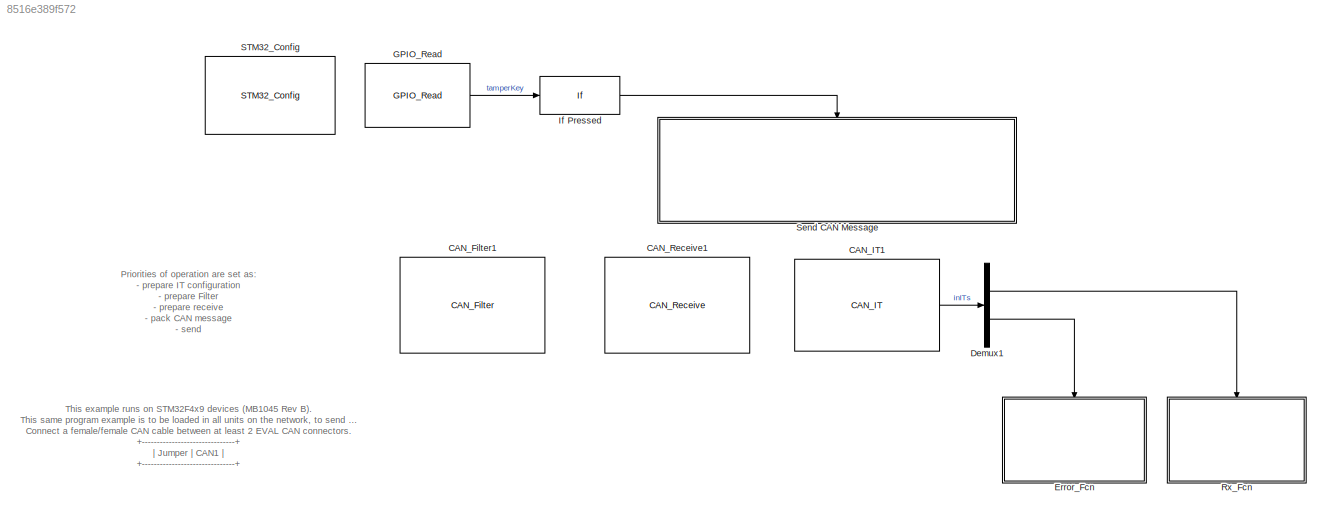
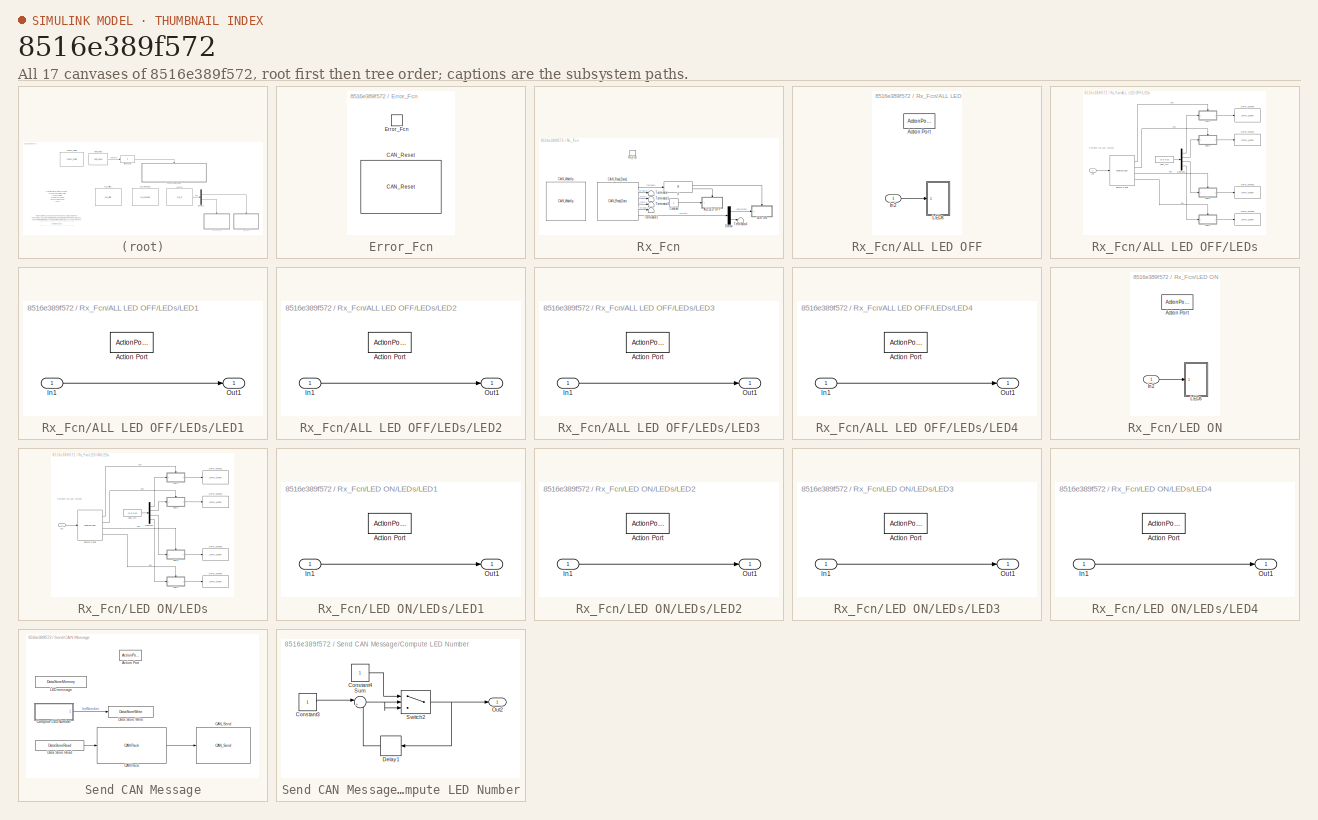
[diagram: thumbnail index - all 17 canvases of the model, root first then tree order]
MODEL slx_8516e389f572
KIND model
CONFIG AbsTol = auto
CONFIG EnableMultiTasking = off
CONFIG FixedStep = 0.25
CONFIG MaxStep = auto
CONFIG MinStep = auto
CONFIG RelTol = 1e-3
CONFIG SampleTimeConstraint = Unconstrained
CONFIG Solver = FixedStepAuto
CONFIG SolverName = FixedStepAuto
CONFIG StartTime = 0.0
CONFIG StopTime = 10.0
BLOCK [Reference] CAN_Filter1  REF=CAN_Lib/CAN_Filter
  AttributesFormatString = Priority=%<Priority>
  Ports = []
  Priority = 2
  SourceBlock = CAN_Lib/CAN_Filter
  SourceProductName = Target Support Package - STM32 Adapter
  SourceType = CAN_Filter
BLOCK [Reference] CAN_IT1  REF=CAN_Lib/CAN_IT
  AttributesFormatString = Priority=%<Priority>
  Ports = [0, 1]
  Priority = 1
  SourceBlock = CAN_Lib/CAN_IT
  SourceProductName = Target Support Package - STM32 Adapter
  SourceType = CAN_IT
BLOCK [Reference] CAN_Receive1  REF=CAN_Lib/CAN_Receive
  AttributesFormatString = Priority=%<Priority>
  Ports = []
  Priority = 3
  SourceBlock = CAN_Lib/CAN_Receive
  SourceProductName = Target Support Package - STM32 Adapter
  SourceType = CAN_Receive
BLOCK [Demux] Demux1
  DisplayOption = bar
  Outputs = 2
  Ports = [1, 2]
BLOCK [SubSystem] Error_Fcn
  Ports = [0, 0, 0, 1]
  RequestExecContextInheritance = off
  TreatAsAtomicUnit = on
BLOCK [Reference] Error_Fcn/CAN_Reset  REF=CAN_Lib/CAN_Reset
  Ports = []
  SourceBlock = CAN_Lib/CAN_Reset
  SourceProductName = Target Support Package - STM32 Adapter
  SourceType = CAN_Reset
BLOCK [TriggerPort] Error_Fcn/Error_Fcn
  Ports = []
  StatesWhenEnabling = held
  TriggerType = function-call
  VariantControl = Variant
BLOCK [Reference] GPIO_Read  REF=GPIO_Lib/GPIO_Read
  Ports = [0, 1]
  SourceBlock = GPIO_Lib/GPIO_Read
  SourceProductName = Target Support Package - STM32 Adapter
  SourceType = GPIO_Read
BLOCK [If] If Pressed
  IfExpression = u1 == 0
  Ports = [1, 1]
  ShowElse = off
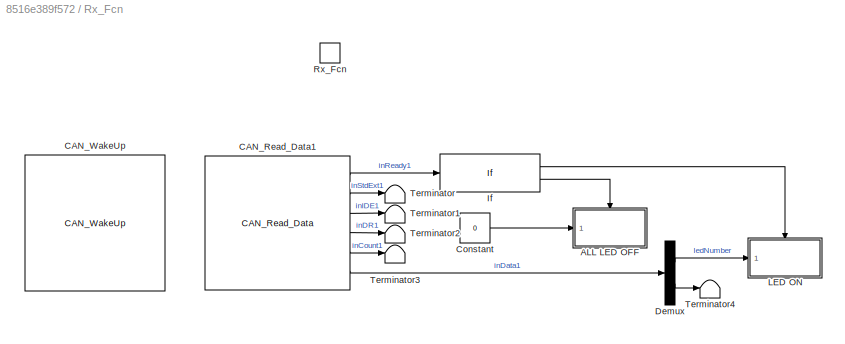
BLOCK [SubSystem] Rx_Fcn
  Ports = [0, 0, 0, 1]
  RequestExecContextInheritance = off
  TreatAsAtomicUnit = on
BLOCK [SubSystem] Rx_Fcn/ALL LED OFF
  Ports = [1, 0, 0, 0, 0, 0, 0, 1]
  RTWSystemCode = Inline
  RequestExecContextInheritance = off
  TreatAsAtomicUnit = on
BLOCK [ActionPort] Rx_Fcn/ALL LED OFF/Action Port
  ActionType = else
BLOCK [Inport] Rx_Fcn/ALL LED OFF/In2
  IconDisplay = Port number
  OutDataTypeStr = uint8
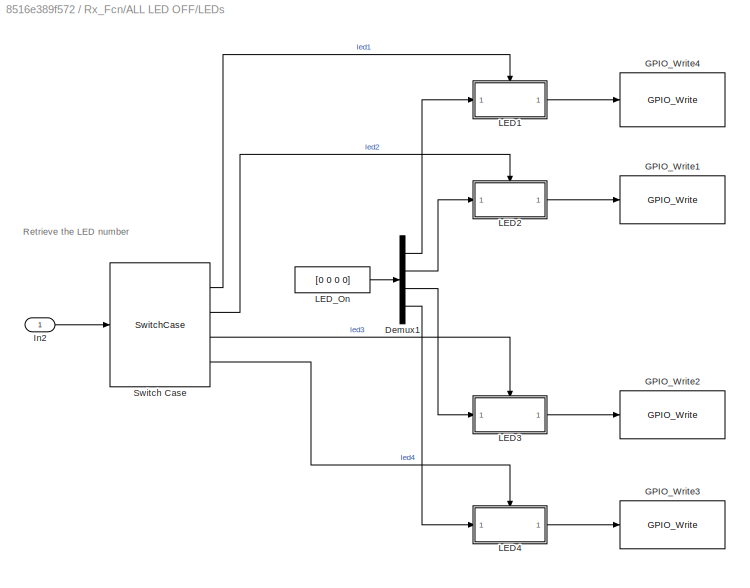
BLOCK [SubSystem] Rx_Fcn/ALL LED OFF/LEDs
  Ports = [1]
  RequestExecContextInheritance = off
BLOCK [Demux] Rx_Fcn/ALL LED OFF/LEDs/Demux1
  DisplayOption = bar
  Ports = [1, 4]
BLOCK [Reference] Rx_Fcn/ALL LED OFF/LEDs/GPIO_Write1  REF=GPIO_Lib/GPIO_Write
  Ports = [1]
  SourceBlock = GPIO_Lib/GPIO_Write
  SourceProductName = Target Support Package - STM32 Adapter
  SourceType = GPIO_Write
BLOCK [Reference] Rx_Fcn/ALL LED OFF/LEDs/GPIO_Write2  REF=GPIO_Lib/GPIO_Write
  Ports = [1]
  SourceBlock = GPIO_Lib/GPIO_Write
  SourceProductName = Target Support Package - STM32 Adapter
  SourceType = GPIO_Write
BLOCK [Reference] Rx_Fcn/ALL LED OFF/LEDs/GPIO_Write3  REF=GPIO_Lib/GPIO_Write
  Ports = [1]
  SourceBlock = GPIO_Lib/GPIO_Write
  SourceProductName = Target Support Package - STM32 Adapter
  SourceType = GPIO_Write
BLOCK [Reference] Rx_Fcn/ALL LED OFF/LEDs/GPIO_Write4  REF=GPIO_Lib/GPIO_Write
  Ports = [1]
  SourceBlock = GPIO_Lib/GPIO_Write
  SourceProductName = Target Support Package - STM32 Adapter
  SourceType = GPIO_Write
BLOCK [Inport] Rx_Fcn/ALL LED OFF/LEDs/In2
  IconDisplay = Port number
  OutDataTypeStr = uint8
BLOCK [SubSystem] Rx_Fcn/ALL LED OFF/LEDs/LED1
  Ports = [1, 1, 0, 0, 0, 0, 0, 1]
  RequestExecContextInheritance = off
  TreatAsAtomicUnit = on
BLOCK [ActionPort] Rx_Fcn/ALL LED OFF/LEDs/LED1/Action Port
  ActionType = case
BLOCK [Inport] Rx_Fcn/ALL LED OFF/LEDs/LED1/In1
  IconDisplay = Port number and signal name
  OutDataTypeStr = uint32
  VarSizeSig = No
BLOCK [Outport] Rx_Fcn/ALL LED OFF/LEDs/LED1/Out1
  IconDisplay = Port number and signal name
  InitialOutput = [1]
  OutDataTypeStr = uint32
  OutputWhenDisabled = reset
  VarSizeSig = No
BLOCK [SubSystem] Rx_Fcn/ALL LED OFF/LEDs/LED2
  Ports = [1, 1, 0, 0, 0, 0, 0, 1]
  RequestExecContextInheritance = off
  TreatAsAtomicUnit = on
BLOCK [ActionPort] Rx_Fcn/ALL LED OFF/LEDs/LED2/Action Port
  ActionType = case
BLOCK [Inport] Rx_Fcn/ALL LED OFF/LEDs/LED2/In1
  IconDisplay = Port number and signal name
BLOCK [Outport] Rx_Fcn/ALL LED OFF/LEDs/LED2/Out1
  IconDisplay = Port number
  InitialOutput = [1]
  OutDataTypeStr = uint32
  OutputWhenDisabled = reset
BLOCK [SubSystem] Rx_Fcn/ALL LED OFF/LEDs/LED3
  Ports = [1, 1, 0, 0, 0, 0, 0, 1]
  RequestExecContextInheritance = off
  TreatAsAtomicUnit = on
BLOCK [ActionPort] Rx_Fcn/ALL LED OFF/LEDs/LED3/Action Port
  ActionType = case
BLOCK [Inport] Rx_Fcn/ALL LED OFF/LEDs/LED3/In1
  IconDisplay = Port number
BLOCK [Outport] Rx_Fcn/ALL LED OFF/LEDs/LED3/Out1
  IconDisplay = Port number
  InitialOutput = [1]
  OutputWhenDisabled = reset
BLOCK [SubSystem] Rx_Fcn/ALL LED OFF/LEDs/LED4
  Ports = [1, 1, 0, 0, 0, 0, 0, 1]
  RequestExecContextInheritance = off
  TreatAsAtomicUnit = on
BLOCK [ActionPort] Rx_Fcn/ALL LED OFF/LEDs/LED4/Action Port
  ActionType = case
BLOCK [Inport] Rx_Fcn/ALL LED OFF/LEDs/LED4/In1
  IconDisplay = Port number
BLOCK [Outport] Rx_Fcn/ALL LED OFF/LEDs/LED4/Out1
  IconDisplay = Port number
  InitialOutput = [1]
  OutputWhenDisabled = reset
BLOCK [Constant] Rx_Fcn/ALL LED OFF/LEDs/LED_On
  OutDataTypeStr = uint32
  Value = [0 0 0 0]
BLOCK [SwitchCase] Rx_Fcn/ALL LED OFF/LEDs/Switch Case
  CaseConditions = {1,2,3,4}
  Ports = [1, 4]
  ShowDefaultCase = off
BLOCK [Reference] Rx_Fcn/CAN_Read_Data1  REF=CAN_Lib/CAN_Read_Data
  Ports = [0, 6]
  SourceBlock = CAN_Lib/CAN_Read_Data
  SourceProductName = Target Support Package - STM32 Adapter
  SourceType = CAN_Read_Data
BLOCK [Reference] Rx_Fcn/CAN_WakeUp  REF=CAN_Lib/CAN_WakeUp
  Ports = []
  SourceBlock = CAN_Lib/CAN_WakeUp
  SourceProductName = Target Support Package - STM32 Adapter
  SourceType = CAN_WakeUp
BLOCK [Constant] Rx_Fcn/Constant
  OutDataTypeStr = uint8
  Value = 0
BLOCK [Demux] Rx_Fcn/Demux
  DisplayOption = bar
  Outputs = 2
  Ports = [1, 2]
BLOCK [If] Rx_Fcn/If
  Ports = [1, 2]
BLOCK [SubSystem] Rx_Fcn/LED ON
  Ports = [1, 0, 0, 0, 0, 0, 0, 1]
  RTWSystemCode = Inline
  RequestExecContextInheritance = off
  TreatAsAtomicUnit = on
BLOCK [ActionPort] Rx_Fcn/LED ON/Action Port
  ActionType = then
BLOCK [Inport] Rx_Fcn/LED ON/In2
  IconDisplay = Port number
  OutDataTypeStr = uint8
BLOCK [SubSystem] Rx_Fcn/LED ON/LEDs
  Ports = [1]
  RTWFcnName = setLed
  RTWFcnNameOpts = User specified
  RTWSystemCode = Reusable function
  RequestExecContextInheritance = off
  TreatAsAtomicUnit = on
BLOCK [Demux] Rx_Fcn/LED ON/LEDs/Demux1
  DisplayOption = bar
  Ports = [1, 4]
BLOCK [Reference] Rx_Fcn/LED ON/LEDs/GPIO_Write1  REF=GPIO_Lib/GPIO_Write
  Ports = [1]
  SourceBlock = GPIO_Lib/GPIO_Write
  SourceProductName = Target Support Package - STM32 Adapter
  SourceType = GPIO_Write
BLOCK [Reference] Rx_Fcn/LED ON/LEDs/GPIO_Write2  REF=GPIO_Lib/GPIO_Write
  Ports = [1]
  SourceBlock = GPIO_Lib/GPIO_Write
  SourceProductName = Target Support Package - STM32 Adapter
  SourceType = GPIO_Write
BLOCK [Reference] Rx_Fcn/LED ON/LEDs/GPIO_Write3  REF=GPIO_Lib/GPIO_Write
  Ports = [1]
  SourceBlock = GPIO_Lib/GPIO_Write
  SourceProductName = Target Support Package - STM32 Adapter
  SourceType = GPIO_Write
BLOCK [Reference] Rx_Fcn/LED ON/LEDs/GPIO_Write4  REF=GPIO_Lib/GPIO_Write
  Ports = [1]
  SourceBlock = GPIO_Lib/GPIO_Write
  SourceProductName = Target Support Package - STM32 Adapter
  SourceType = GPIO_Write
BLOCK [Inport] Rx_Fcn/LED ON/LEDs/In2
  IconDisplay = Port number
  OutDataTypeStr = uint8
BLOCK [SubSystem] Rx_Fcn/LED ON/LEDs/LED1
  Ports = [1, 1, 0, 0, 0, 0, 0, 1]
  RequestExecContextInheritance = off
  TreatAsAtomicUnit = on
BLOCK [ActionPort] Rx_Fcn/LED ON/LEDs/LED1/Action Port
  ActionType = case
BLOCK [Inport] Rx_Fcn/LED ON/LEDs/LED1/In1
  IconDisplay = Port number and signal name
  OutDataTypeStr = uint32
  VarSizeSig = No
BLOCK [Outport] Rx_Fcn/LED ON/LEDs/LED1/Out1
  IconDisplay = Port number and signal name
  InitialOutput = [1]
  OutDataTypeStr = uint32
  OutputWhenDisabled = reset
  VarSizeSig = No
BLOCK [SubSystem] Rx_Fcn/LED ON/LEDs/LED2
  Ports = [1, 1, 0, 0, 0, 0, 0, 1]
  RequestExecContextInheritance = off
  TreatAsAtomicUnit = on
BLOCK [ActionPort] Rx_Fcn/LED ON/LEDs/LED2/Action Port
  ActionType = case
BLOCK [Inport] Rx_Fcn/LED ON/LEDs/LED2/In1
  IconDisplay = Port number and signal name
BLOCK [Outport] Rx_Fcn/LED ON/LEDs/LED2/Out1
  IconDisplay = Port number
  InitialOutput = [1]
  OutDataTypeStr = uint32
  OutputWhenDisabled = reset
BLOCK [SubSystem] Rx_Fcn/LED ON/LEDs/LED3
  Ports = [1, 1, 0, 0, 0, 0, 0, 1]
  RequestExecContextInheritance = off
  TreatAsAtomicUnit = on
BLOCK [ActionPort] Rx_Fcn/LED ON/LEDs/LED3/Action Port
  ActionType = case
BLOCK [Inport] Rx_Fcn/LED ON/LEDs/LED3/In1
  IconDisplay = Port number
BLOCK [Outport] Rx_Fcn/LED ON/LEDs/LED3/Out1
  IconDisplay = Port number
  InitialOutput = [1]
  OutputWhenDisabled = reset
BLOCK [SubSystem] Rx_Fcn/LED ON/LEDs/LED4
  Ports = [1, 1, 0, 0, 0, 0, 0, 1]
  RequestExecContextInheritance = off
  TreatAsAtomicUnit = on
BLOCK [ActionPort] Rx_Fcn/LED ON/LEDs/LED4/Action Port
  ActionType = case
BLOCK [Inport] Rx_Fcn/LED ON/LEDs/LED4/In1
  IconDisplay = Port number
BLOCK [Outport] Rx_Fcn/LED ON/LEDs/LED4/Out1
  IconDisplay = Port number
  InitialOutput = [1]
  OutputWhenDisabled = reset
BLOCK [Constant] Rx_Fcn/LED ON/LEDs/LED_On
  OutDataTypeStr = uint32
  Value = [0 0 0 0]
BLOCK [SwitchCase] Rx_Fcn/LED ON/LEDs/Switch Case
  CaseConditions = {1,2,3,4}
  Ports = [1, 4]
  ShowDefaultCase = off
BLOCK [TriggerPort] Rx_Fcn/Rx_Fcn
  Ports = []
  StatesWhenEnabling = held
  TriggerType = function-call
  VariantControl = Variant
BLOCK [Terminator] Rx_Fcn/Terminator
BLOCK [Terminator] Rx_Fcn/Terminator1
BLOCK [Terminator] Rx_Fcn/Terminator2
BLOCK [Terminator] Rx_Fcn/Terminator3
BLOCK [Terminator] Rx_Fcn/Terminator4
BLOCK [Reference] STM32_Config  REF=STM32_Config_Lib/STM32_Config
  Ports = []
  Priority = 0
  SourceBlock = STM32_Config_Lib/STM32_Config
  SourceProductName = Target Support Package - STM32 Adapter
  SourceType = STM32_Config
BLOCK [SubSystem] Send CAN Message
  Ports = [0, 0, 0, 0, 0, 0, 0, 1]
  RTWFcnName = sendMessage
  RTWFcnNameOpts = User specified
  RTWSystemCode = Reusable function
  RequestExecContextInheritance = off
  TreatAsAtomicUnit = on
BLOCK [ActionPort] Send CAN Message/Action Port
  ActionType = then
BLOCK [Reference] Send CAN Message/CAN Pack  REF=canmsglib/CAN Pack
  AttributesFormatString = Priority=%<Priority>
  Ports = [1, 1]
  Priority = 22
  SourceBlock = canmsglib/CAN Pack
  SourceProductBaseCode = XP
  SourceProductName = Simulink Real-Time
  SourceType = CAN Pack
BLOCK [Reference] Send CAN Message/CAN_Send  REF=CAN_Lib/CAN_Send
  AttributesFormatString = Priority=%<Priority>
  Ports = [1]
  Priority = 23
  SourceBlock = CAN_Lib/CAN_Send
  SourceProductName = Target Support Package - STM32 Adapter
  SourceType = CAN_Send
BLOCK [SubSystem] Send CAN Message/Compute LED Number
  AttributesFormatString = Priority=%<Priority>
  Ports = [0, 1]
  Priority = 21
  RTWFcnName = computeLedNumber
  RTWFcnNameOpts = User specified
  RTWSystemCode = Reusable function
  RequestExecContextInheritance = off
  TreatAsAtomicUnit = on
BLOCK [Constant] Send CAN Message/Compute LED Number/Constant3
  OutDataTypeStr = uint8
BLOCK [Constant] Send CAN Message/Compute LED Number/Constant4
  OutDataTypeStr = uint8
BLOCK [Delay] Send CAN Message/Compute LED Number/Delay1
  DelayLength = 1
  InitialCondition = 0
  InputPortMap = u0
  Ports = [1, 1]
BLOCK [Outport] Send CAN Message/Compute LED Number/Out2
  IconDisplay = Port number
BLOCK [Sum] Send CAN Message/Compute LED Number/Sum
  IconShape = round
  InputSameDT = off
  Inputs = |++
  OutDataTypeStr = Inherit: Inherit via internal rule
  Ports = [2, 1]
  SaturateOnIntegerOverflow = off
BLOCK [Switch] Send CAN Message/Compute LED Number/Switch2
  Criteria = u2 > Threshold
  InputSameDT = off
  OutDataTypeStr = uint8
  SaturateOnIntegerOverflow = off
  Threshold = 4
BLOCK [DataStoreRead] Send CAN Message/Data Store Read
  DataStoreElements = CAN_MESSAGE(:)
  DataStoreName = CAN_MESSAGE
  Ports = [0, 1]
BLOCK [DataStoreWrite] Send CAN Message/Data Store Write
  DataStoreElements = CAN_MESSAGE(1)
  DataStoreName = CAN_MESSAGE
  Ports = [1]
BLOCK [DataStoreMemory] Send CAN Message/LED message
  DataStoreName = CAN_MESSAGE
  InitialValue = [1, 173]
  OutDataTypeStr = uint8
  ReadBeforeWriteMsg = warning
  ShowAdditionalParam = off
  WriteAfterReadMsg = warning
  WriteAfterWriteMsg = warning
ANNOTATION (root): Priorities of operation are set as: - prepare IT configuration - prepare Filter - prepare receive - pack CAN message - send
ANNOTATION (root): This example runs on STM32F4x9 devices (MB1045 Rev B). This same program example is to be loaded in all units on the network, to send and receive frames. Connect a female/female CAN cable between at least 2 EVAL CAN connectors. +-------------------------------+ | Jumper | CAN1 | +-------------------------------+ | JP10 | 1-2 | | JP11 | fitted | | JP16 | fitted | +-------------------------------+ N...<+111ch>
ANNOTATION Rx_Fcn/ALL LED OFF/LEDs: Retrieve the LED number
ANNOTATION Rx_Fcn/LED ON/LEDs: Retrieve the LED number
LINE CAN_IT1:1 -> Demux1:1
LINE Demux1:1 -> Rx_Fcn:trigger
LINE Demux1:2 -> Error_Fcn:trigger
LINE GPIO_Read:1 -> If Pressed:1
LINE If Pressed:1 -> Send CAN Message:ifaction
LINE Rx_Fcn/ALL LED OFF/In2:1 -> Rx_Fcn/ALL LED OFF/LEDs:1
LINE Rx_Fcn/ALL LED OFF/LEDs/Demux1:1 -> Rx_Fcn/ALL LED OFF/LEDs/LED1:1
LINE Rx_Fcn/ALL LED OFF/LEDs/Demux1:2 -> Rx_Fcn/ALL LED OFF/LEDs/LED2:1
LINE Rx_Fcn/ALL LED OFF/LEDs/Demux1:3 -> Rx_Fcn/ALL LED OFF/LEDs/LED3:1
LINE Rx_Fcn/ALL LED OFF/LEDs/Demux1:4 -> Rx_Fcn/ALL LED OFF/LEDs/LED4:1
LINE Rx_Fcn/ALL LED OFF/LEDs/In2:1 -> Rx_Fcn/ALL LED OFF/LEDs/Switch Case:1
LINE Rx_Fcn/ALL LED OFF/LEDs/LED1/In1:1 -> Rx_Fcn/ALL LED OFF/LEDs/LED1/Out1:1
LINE Rx_Fcn/ALL LED OFF/LEDs/LED1:1 -> Rx_Fcn/ALL LED OFF/LEDs/GPIO_Write4:1
LINE Rx_Fcn/ALL LED OFF/LEDs/LED2/In1:1 -> Rx_Fcn/ALL LED OFF/LEDs/LED2/Out1:1
LINE Rx_Fcn/ALL LED OFF/LEDs/LED2:1 -> Rx_Fcn/ALL LED OFF/LEDs/GPIO_Write1:1
LINE Rx_Fcn/ALL LED OFF/LEDs/LED3/In1:1 -> Rx_Fcn/ALL LED OFF/LEDs/LED3/Out1:1
LINE Rx_Fcn/ALL LED OFF/LEDs/LED3:1 -> Rx_Fcn/ALL LED OFF/LEDs/GPIO_Write2:1
LINE Rx_Fcn/ALL LED OFF/LEDs/LED4/In1:1 -> Rx_Fcn/ALL LED OFF/LEDs/LED4/Out1:1
LINE Rx_Fcn/ALL LED OFF/LEDs/LED4:1 -> Rx_Fcn/ALL LED OFF/LEDs/GPIO_Write3:1
LINE Rx_Fcn/ALL LED OFF/LEDs/LED_On:1 -> Rx_Fcn/ALL LED OFF/LEDs/Demux1:1
LINE Rx_Fcn/ALL LED OFF/LEDs/Switch Case:1 -> Rx_Fcn/ALL LED OFF/LEDs/LED1:ifaction
LINE Rx_Fcn/ALL LED OFF/LEDs/Switch Case:2 -> Rx_Fcn/ALL LED OFF/LEDs/LED2:ifaction
LINE Rx_Fcn/ALL LED OFF/LEDs/Switch Case:3 -> Rx_Fcn/ALL LED OFF/LEDs/LED3:ifaction
LINE Rx_Fcn/ALL LED OFF/LEDs/Switch Case:4 -> Rx_Fcn/ALL LED OFF/LEDs/LED4:ifaction
LINE Rx_Fcn/CAN_Read_Data1:1 -> Rx_Fcn/If:1
LINE Rx_Fcn/CAN_Read_Data1:2 -> Rx_Fcn/Terminator:1
LINE Rx_Fcn/CAN_Read_Data1:3 -> Rx_Fcn/Terminator1:1
LINE Rx_Fcn/CAN_Read_Data1:4 -> Rx_Fcn/Terminator2:1
LINE Rx_Fcn/CAN_Read_Data1:5 -> Rx_Fcn/Terminator3:1
LINE Rx_Fcn/CAN_Read_Data1:6 -> Rx_Fcn/Demux:1
LINE Rx_Fcn/Constant:1 -> Rx_Fcn/ALL LED OFF:1
LINE Rx_Fcn/Demux:1 -> Rx_Fcn/LED ON:1
LINE Rx_Fcn/Demux:2 -> Rx_Fcn/Terminator4:1
LINE Rx_Fcn/If:1 -> Rx_Fcn/LED ON:ifaction
LINE Rx_Fcn/If:2 -> Rx_Fcn/ALL LED OFF:ifaction
LINE Rx_Fcn/LED ON/In2:1 -> Rx_Fcn/LED ON/LEDs:1
LINE Rx_Fcn/LED ON/LEDs/Demux1:1 -> Rx_Fcn/LED ON/LEDs/LED1:1
LINE Rx_Fcn/LED ON/LEDs/Demux1:2 -> Rx_Fcn/LED ON/LEDs/LED2:1
LINE Rx_Fcn/LED ON/LEDs/Demux1:3 -> Rx_Fcn/LED ON/LEDs/LED3:1
LINE Rx_Fcn/LED ON/LEDs/Demux1:4 -> Rx_Fcn/LED ON/LEDs/LED4:1
LINE Rx_Fcn/LED ON/LEDs/In2:1 -> Rx_Fcn/LED ON/LEDs/Switch Case:1
LINE Rx_Fcn/LED ON/LEDs/LED1/In1:1 -> Rx_Fcn/LED ON/LEDs/LED1/Out1:1
LINE Rx_Fcn/LED ON/LEDs/LED1:1 -> Rx_Fcn/LED ON/LEDs/GPIO_Write1:1
LINE Rx_Fcn/LED ON/LEDs/LED2/In1:1 -> Rx_Fcn/LED ON/LEDs/LED2/Out1:1
LINE Rx_Fcn/LED ON/LEDs/LED2:1 -> Rx_Fcn/LED ON/LEDs/GPIO_Write2:1
LINE Rx_Fcn/LED ON/LEDs/LED3/In1:1 -> Rx_Fcn/LED ON/LEDs/LED3/Out1:1
LINE Rx_Fcn/LED ON/LEDs/LED3:1 -> Rx_Fcn/LED ON/LEDs/GPIO_Write3:1
LINE Rx_Fcn/LED ON/LEDs/LED4/In1:1 -> Rx_Fcn/LED ON/LEDs/LED4/Out1:1
LINE Rx_Fcn/LED ON/LEDs/LED4:1 -> Rx_Fcn/LED ON/LEDs/GPIO_Write4:1
LINE Rx_Fcn/LED ON/LEDs/LED_On:1 -> Rx_Fcn/LED ON/LEDs/Demux1:1
LINE Rx_Fcn/LED ON/LEDs/Switch Case:1 -> Rx_Fcn/LED ON/LEDs/LED1:ifaction
LINE Rx_Fcn/LED ON/LEDs/Switch Case:2 -> Rx_Fcn/LED ON/LEDs/LED2:ifaction
LINE Rx_Fcn/LED ON/LEDs/Switch Case:3 -> Rx_Fcn/LED ON/LEDs/LED3:ifaction
LINE Rx_Fcn/LED ON/LEDs/Switch Case:4 -> Rx_Fcn/LED ON/LEDs/LED4:ifaction
LINE Send CAN Message/CAN Pack:1 -> Send CAN Message/CAN_Send:1
LINE Send CAN Message/Compute LED Number/Constant3:1 -> Send CAN Message/Compute LED Number/Sum:1
LINE Send CAN Message/Compute LED Number/Constant4:1 -> Send CAN Message/Compute LED Number/Switch2:1
LINE Send CAN Message/Compute LED Number/Delay1:1 -> Send CAN Message/Compute LED Number/Sum:2
NET Send CAN Message/Compute LED Number/Sum:1 -> Send CAN Message/Compute LED Number/Switch2:2, Send CAN Message/Compute LED Number/Switch2:3
NET Send CAN Message/Compute LED Number/Switch2:1 -> Send CAN Message/Compute LED Number/Delay1:1, Send CAN Message/Compute LED Number/Out2:1
LINE Send CAN Message/Compute LED Number:1 -> Send CAN Message/Data Store Write:1
LINE Send CAN Message/Data Store Read:1 -> Send CAN Message/CAN Pack:1
note: NET lines group one-source signal fan-out (src -> all destinations, sorted); 1:1 wires keep LINE
